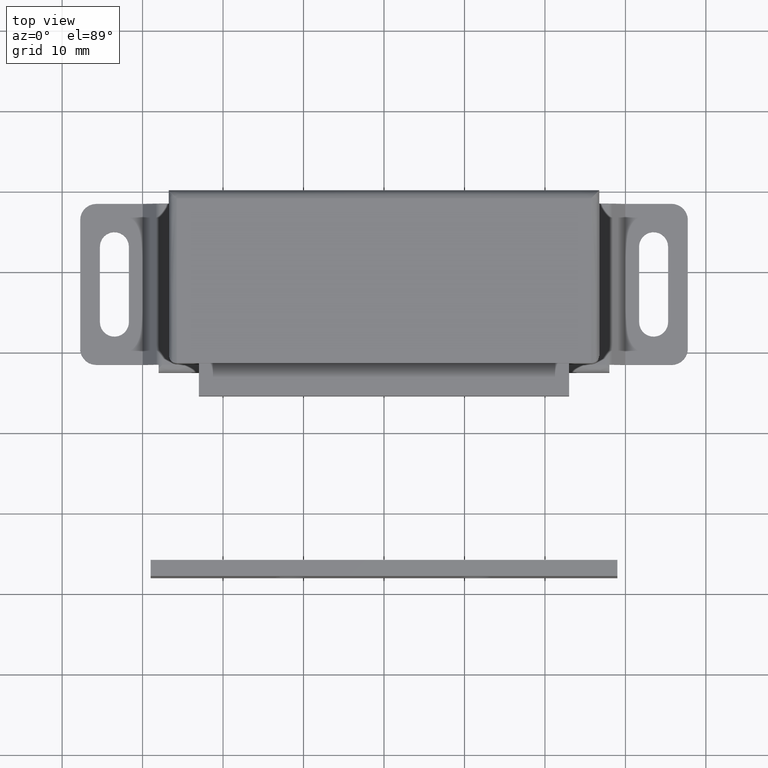
[diagram: clean part render]
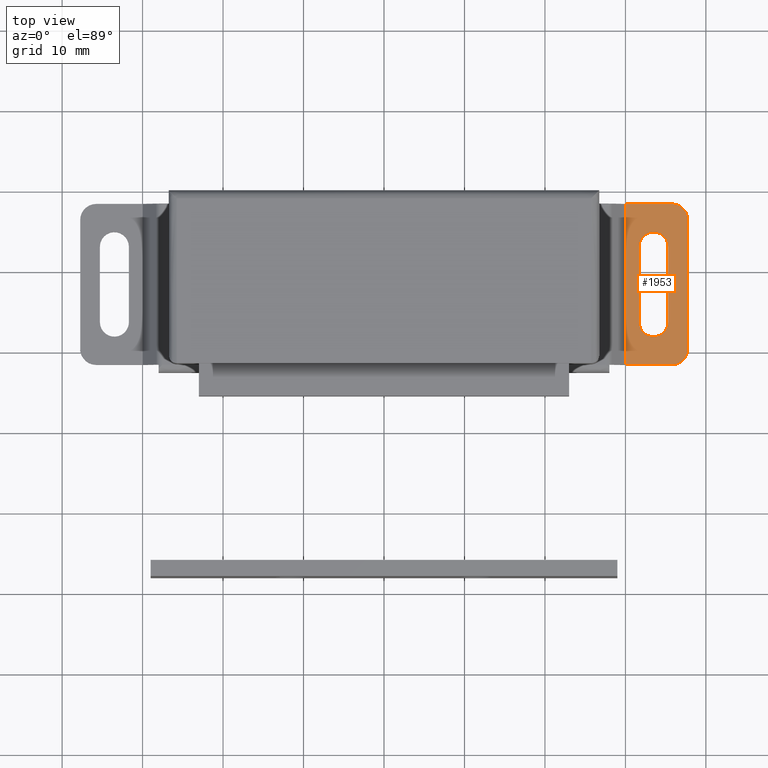
[diagram: same view with one face highlighted and labeled with its STEP entity id]
A machine part, top view. The second image highlights one B-rep face of the part: STEP entity #1953.
In plain terms, the highlighted face is a freeform B-spline surface patch.
Its self-contained STEP definition (entity closure, byte-faithful):
#730=CARTESIAN_POINT('',(29.999991199962299,-1.499999999999946,1.0));
#731=VERTEX_POINT('',#730);
#737=CARTESIAN_POINT('',(35.750003999999997,-1.499999999999946,1.0));
#738=VERTEX_POINT('',#737);
#739=CARTESIAN_POINT('',(29.999991199962299,-1.499999999999946,1.0));
#740=CARTESIAN_POINT('',(35.750003999999997,-1.499999999999946,1.0));
#741=QUASI_UNIFORM_CURVE('',1,(#739,#740),.UNSPECIFIED.,.F.,.U.);
#742=EDGE_CURVE('',#731,#738,#741,.T.);
#1008=CARTESIAN_POINT('',(35.750003999999997,-21.500000000000000,1.0));
#1009=VERTEX_POINT('',#1008);
#1015=CARTESIAN_POINT('',(29.999991199962299,-21.500000000000000,1.0));
#1016=VERTEX_POINT('',#1015);
#1017=CARTESIAN_POINT('',(29.999991199962299,-21.500000000000000,1.0));
#1018=CARTESIAN_POINT('',(35.750003999999997,-21.500000000000000,1.0));
#1019=QUASI_UNIFORM_CURVE('',1,(#1017,#1018),.UNSPECIFIED.,.F.,.U.);
#1020=EDGE_CURVE('',#1016,#1009,#1019,.T.);
#1840=CARTESIAN_POINT('',(29.999991199962299,-21.500000000000000,1.0));
#1841=CARTESIAN_POINT('',(29.999991199962299,-1.499999999999946,1.0));
#1842=QUASI_UNIFORM_CURVE('',1,(#1840,#1841),.UNSPECIFIED.,.F.,.U.);
#1843=EDGE_CURVE('',#1016,#731,#1842,.T.);
#1848=CARTESIAN_POINT('',(29.612878075621449,-22.498999961236120,1.0));
#1849=CARTESIAN_POINT('',(38.137117332212412,-22.498999961236120,1.0));
#1850=CARTESIAN_POINT('',(29.612878075621449,-0.500999502322024,1.0));
#1851=CARTESIAN_POINT('',(38.137117332212412,-0.500999502322024,1.0));
#1852=B_SPLINE_SURFACE_WITH_KNOTS('',1,1,((#1848,#1850),(#1849,#1851)),.UNSPECIFIED.,.F.,.F.,.U.,(2,2),(2,2),(0.0,8.524239256590960),(0.0,21.998000458914099),.UNSPECIFIED.);
#1853=ORIENTED_EDGE('',*,*,#1020,.T.);
#1854=CARTESIAN_POINT('',(37.750003999999997,-19.500000000000000,1.0));
#1855=VERTEX_POINT('',#1854);
#1856=CARTESIAN_POINT('',(35.750003999999997,-21.500000000000000,1.0));
#1857=CARTESIAN_POINT('',(37.750004000000004,-21.499999999999996,1.0));
#1858=CARTESIAN_POINT('',(37.750003999999997,-19.500000000000000,1.0));
#1866=(BOUNDED_CURVE()B_SPLINE_CURVE(2,(#1856,#1857,#1858),.UNSPECIFIED.,.F.,.U.)CURVE()GEOMETRIC_REPRESENTATION_ITEM()QUASI_UNIFORM_CURVE()RATIONAL_B_SPLINE_CURVE((1.0,0.707106781186548,1.0))REPRESENTATION_ITEM(''));
#1867=EDGE_CURVE('',#1009,#1855,#1866,.T.);
#1868=ORIENTED_EDGE('',*,*,#1867,.T.);
#1869=CARTESIAN_POINT('',(37.750003999999997,-3.499999999999950,1.0));
#1870=VERTEX_POINT('',#1869);
#1871=CARTESIAN_POINT('',(37.750003999999997,-19.500000000000000,1.0));
#1872=CARTESIAN_POINT('',(37.750003999999997,-3.499999999999950,1.0));
#1873=QUASI_UNIFORM_CURVE('',1,(#1871,#1872),.UNSPECIFIED.,.F.,.U.);
#1874=EDGE_CURVE('',#1855,#1870,#1873,.T.);
#1875=ORIENTED_EDGE('',*,*,#1874,.T.);
#1876=CARTESIAN_POINT('',(37.750003999999997,-3.499999999999945,1.0));
#1877=CARTESIAN_POINT('',(37.750004000000004,-1.499999999999944,1.0));
#1878=CARTESIAN_POINT('',(35.750003999999997,-1.499999999999945,1.0));
#1886=(BOUNDED_CURVE()B_SPLINE_CURVE(2,(#1876,#1877,#1878),.UNSPECIFIED.,.F.,.U.)CURVE()GEOMETRIC_REPRESENTATION_ITEM()QUASI_UNIFORM_CURVE()RATIONAL_B_SPLINE_CURVE((1.0,0.707106781186548,1.0))REPRESENTATION_ITEM(''));
#1887=EDGE_CURVE('',#1870,#738,#1886,.T.);
#1888=ORIENTED_EDGE('',*,*,#1887,.T.);
#1889=ORIENTED_EDGE('',*,*,#742,.F.);
#1890=ORIENTED_EDGE('',*,*,#1843,.F.);
#1891=EDGE_LOOP('',(#1853,#1868,#1875,#1888,#1889,#1890));
#1892=FACE_OUTER_BOUND('',#1891,.T.);
#1893=CARTESIAN_POINT('',(35.300007000000001,-6.800000000000240,1.0));
#1894=VERTEX_POINT('',#1893);
#1895=CARTESIAN_POINT('',(35.300007000000001,-16.200008000000050,1.0));
#1896=VERTEX_POINT('',#1895);
#1897=CARTESIAN_POINT('',(35.300007000000001,-6.800000000000240,1.0));
#1898=CARTESIAN_POINT('',(35.300007000000001,-16.200008000000050,1.0));
#1899=QUASI_UNIFORM_CURVE('',1,(#1897,#1898),.UNSPECIFIED.,.F.,.U.);
#1900=EDGE_CURVE('',#1894,#1896,#1899,.T.);
#1901=ORIENTED_EDGE('',*,*,#1900,.T.);
#1902=CARTESIAN_POINT('',(31.700001000000000,-16.200008000000050,1.0));
#1903=VERTEX_POINT('',#1902);
#1904=CARTESIAN_POINT('',(31.700001000000000,-16.200008000000050,1.0));
#1905=CARTESIAN_POINT('',(31.699841336980420,-16.406197248842151,0.999999999999998));
#1906=CARTESIAN_POINT('',(31.756307516628159,-16.730051049402590,1.000000000000001));
#1907=CARTESIAN_POINT('',(31.946142330110309,-17.131341868802110,1.000000000000002));
#1908=CARTESIAN_POINT('',(32.192896905315081,-17.464205489520300,1.000000000000000));
#1909=CARTESIAN_POINT('',(32.526633402841831,-17.738058797482140,0.999999999999998));
#1910=CARTESIAN_POINT('',(32.917321182645793,-17.916953061151698,1.000000000000005));
#1911=CARTESIAN_POINT('',(33.278260546427042,-17.997984756555191,0.999999999999991));
#1912=CARTESIAN_POINT('',(33.707255015682932,-18.008589647118601,1.000000000000007));
#1913=CARTESIAN_POINT('',(34.128036413514103,-17.908702725664650,0.999999999999995));
#1914=CARTESIAN_POINT('',(34.493415754178372,-17.713264623417530,1.000000000000001));
#1915=CARTESIAN_POINT('',(34.758843458884790,-17.500851834716769,1.000000000000000));
#1916=CARTESIAN_POINT('',(34.971483360531948,-17.254343487473481,0.999999999999998));
#1917=CARTESIAN_POINT('',(35.157574640106027,-16.935079160258951,1.000000000000018));
#1918=CARTESIAN_POINT('',(35.273924284539831,-16.582877009811430,0.999999999999950));
#1919=CARTESIAN_POINT('',(35.300015482494459,-16.317802516531231,1.000000000000036));
#1920=CARTESIAN_POINT('',(35.300007000000001,-16.200008000000050,1.0));
#1921=B_SPLINE_CURVE_WITH_KNOTS('',3,(#1904,#1905,#1906,#1907,#1908,#1909,#1910,#1911,#1912,#1913,#1914,#1915,#1916,#1917,#1918,#1919,#1920),.UNSPECIFIED.,.F.,.U.,(4,1,1,1,1,1,1,1,1,1,1,1,1,1,4),(0.000000230278471,0.618503384187941,0.971938027938163,1.325395062237552,1.855557210940987,2.253205332599692,2.606648965670157,2.960027958068213,3.534370882617512,3.887814064779281,4.197083432537799,4.550529865316078,4.859802958634301,5.301619539353731,5.655018105291125),.UNSPECIFIED.);
#1922=EDGE_CURVE('',#1903,#1896,#1921,.T.);
#1923=ORIENTED_EDGE('',*,*,#1922,.F.);
#1924=CARTESIAN_POINT('',(31.700001000000000,-6.800000000000240,1.0));
#1925=VERTEX_POINT('',#1924);
#1926=CARTESIAN_POINT('',(31.700001000000000,-16.200008000000050,1.0));
#1927=CARTESIAN_POINT('',(31.700001000000000,-6.800000000000240,1.0));
#1928=QUASI_UNIFORM_CURVE('',1,(#1926,#1927),.UNSPECIFIED.,.F.,.U.);
#1929=EDGE_CURVE('',#1903,#1925,#1928,.T.);
#1930=ORIENTED_EDGE('',*,*,#1929,.T.);
#1931=CARTESIAN_POINT('',(35.300007000000001,-6.800000000000240,1.0));
#1932=CARTESIAN_POINT('',(35.300045932380307,-6.652748013857499,1.0));
#1933=CARTESIAN_POINT('',(35.267292210797130,-6.387698972534738,0.999999999999999));
#1934=CARTESIAN_POINT('',(35.137691224850727,-6.025455561564612,1.000000000000001));
#1935=CARTESIAN_POINT('',(34.955104344541027,-5.720827577020129,1.000000000000000));
#1936=CARTESIAN_POINT('',(34.716601425664017,-5.457696944901268,1.000000000000001));
#1937=CARTESIAN_POINT('',(34.371944966039223,-5.201967535086677,0.999999999999998));
#1938=CARTESIAN_POINT('',(33.970375254417007,-5.041389719935125,1.000000000000006));
#1939=CARTESIAN_POINT('',(33.515071244793489,-4.985302456997725,0.999999999999995));
#1940=CARTESIAN_POINT('',(33.145952424151901,-5.021658197596544,1.000000000000000));
#1941=CARTESIAN_POINT('',(32.793696818602918,-5.133268141167230,1.000000000000004));
#1942=CARTESIAN_POINT('',(32.480480303760139,-5.300665415570743,0.999999999999998));
#1943=CARTESIAN_POINT('',(32.197052303800923,-5.539151002839760,1.000000000000002));
#1944=CARTESIAN_POINT('',(31.942111780313990,-5.865785235022758,0.999999999999993));
#1945=CARTESIAN_POINT('',(31.750262756195809,-6.284625382490366,1.000000000000018));
#1946=CARTESIAN_POINT('',(31.699937890679990,-6.623290788090779,0.999999999999984));
#1947=CARTESIAN_POINT('',(31.700001000000000,-6.800000000000240,1.0));
#1948=B_SPLINE_CURVE_WITH_KNOTS('',3,(#1931,#1932,#1933,#1934,#1935,#1936,#1937,#1938,#1939,#1940,#1941,#1942,#1943,#1944,#1945,#1946,#1947),.UNSPECIFIED.,.F.,.U.,(4,1,1,1,1,1,1,1,1,1,1,1,1,1,4),(0.000000230239634,0.441757018214664,0.795221088005025,1.148672229152026,1.502120848610090,1.855557210914578,2.429930475411484,2.783344681036949,3.225107323215326,3.534370882604351,3.887814064768624,4.285447076445836,4.638884963354204,5.124895956899915,5.655018105291372),.UNSPECIFIED.);
#1949=EDGE_CURVE('',#1894,#1925,#1948,.T.);
#1950=ORIENTED_EDGE('',*,*,#1949,.F.);
#1951=EDGE_LOOP('',(#1901,#1923,#1930,#1950));
#1952=FACE_BOUND('',#1951,.T.);
#1953=ADVANCED_FACE('',(#1892,#1952),#1852,.T.);